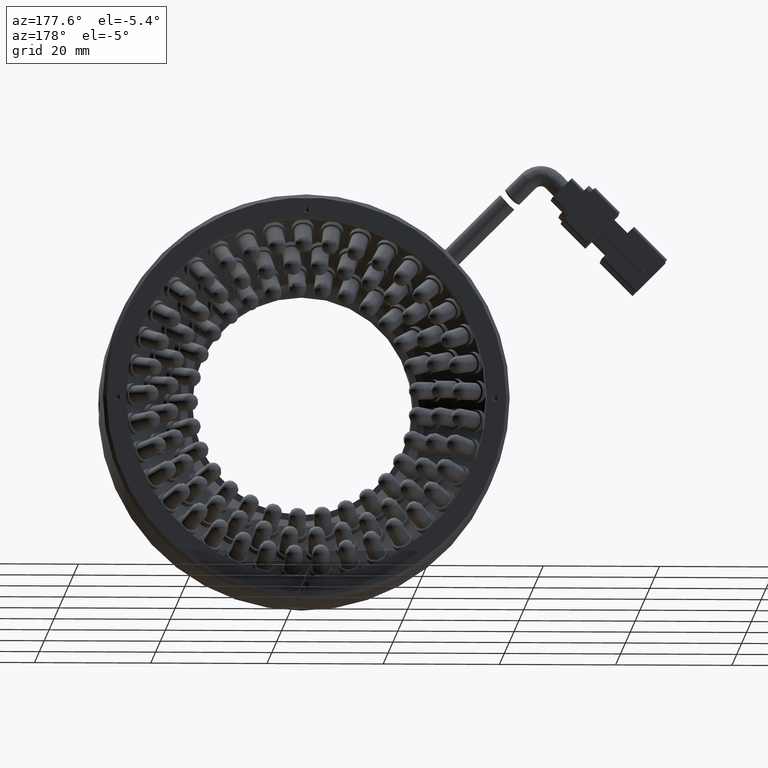
[diagram: clean part render]
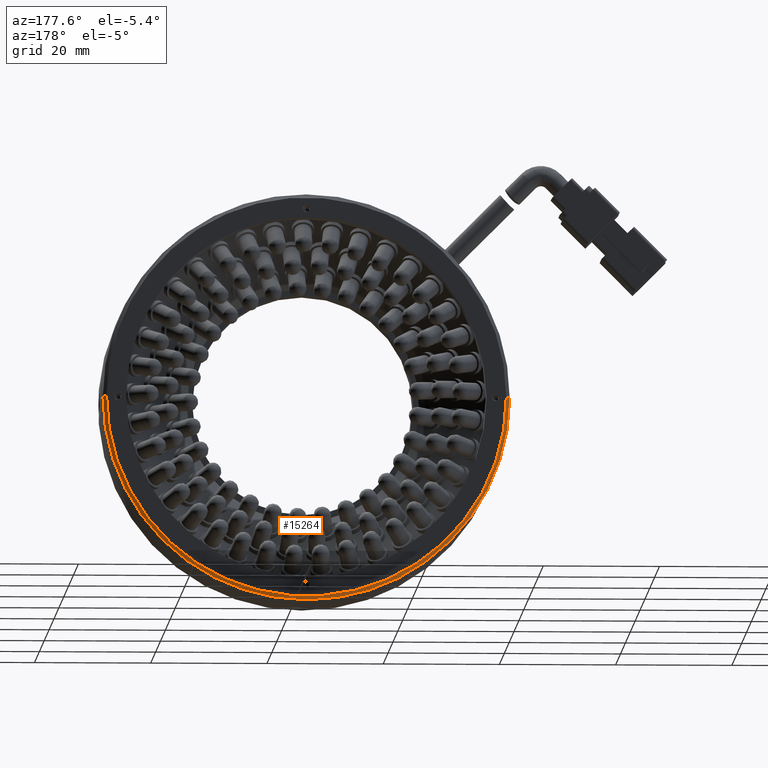
[diagram: same view with one face highlighted and labeled with its STEP entity id]
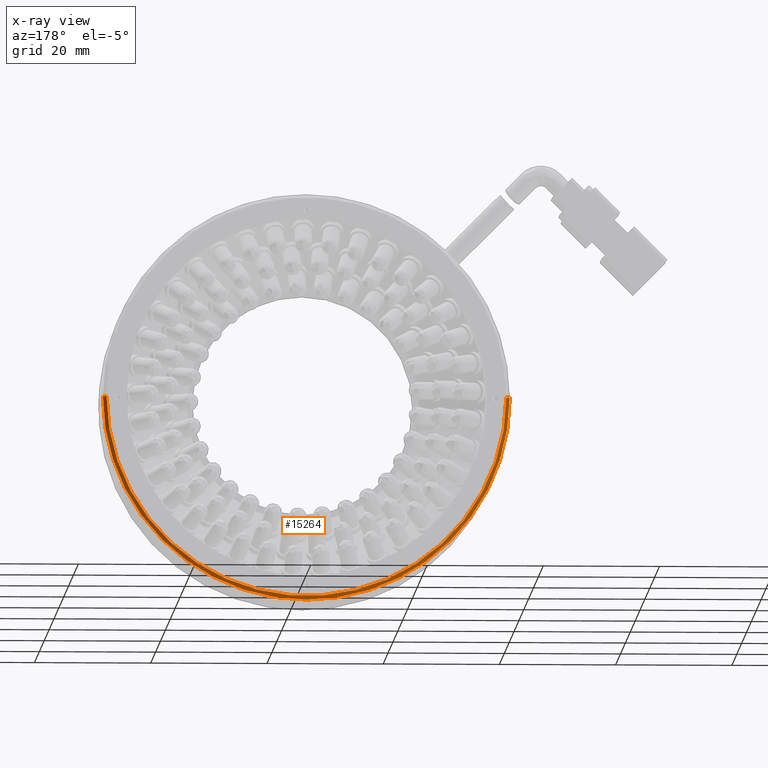
[diagram: x-ray of the same camera — body ghosted, the highlighted face saturated]
A machine part, auxiliary view. The second image highlights one B-rep face of the part: STEP entity #15264.
The next image is the same camera in x-ray: the body ghosted, the highlighted face saturated — about 0% of this face is hidden behind the body in this view.
In plain terms, the highlighted conical surface has half-angle 45 deg.
Its self-contained STEP definition (entity closure, byte-faithful):
#3446 = CARTESIAN_POINT ( 'NONE',  ( 32.28392897960851800, 16.70727133510872900, -1.131636017531745300E-015 ) ) ;
#5012 = VERTEX_POINT ( 'NONE', #54032 ) ;
#5571 = CARTESIAN_POINT ( 'NONE',  ( 31.68392897960855200, 17.30727133510869100, -1.131636017531745300E-015 ) ) ;
#5646 = CARTESIAN_POINT ( 'NONE',  ( -2.716071020391490200, 16.70727133510872900, -1.131636017531745300E-015 ) ) ;
#8736 = CARTESIAN_POINT ( 'NONE',  ( -2.716071020391490200, 17.30727133510869100, -1.131636017531745300E-015 ) ) ;
#11140 = EDGE_CURVE ( 'NONE', #5012, #46413, #76349, .T. ) ;
#13149 = ORIENTED_EDGE ( 'NONE', *, *, #42486, .F. ) ;
#15264 = ADVANCED_FACE ( 'NONE', ( #63432 ), #19345, .T. ) ;
#15405 = CARTESIAN_POINT ( 'NONE',  ( -2.716071020391490200, 16.70727133510872900, -1.131636017531745300E-015 ) ) ;
#15480 = DIRECTION ( 'NONE',  ( 1.000000000000000000, 0.0000000000000000000, 0.0000000000000000000 ) ) ;
#15877 = DIRECTION ( 'NONE',  ( 0.7071067811865536800, -0.7071067811865414700, 0.0000000000000000000 ) ) ;
#16750 = AXIS2_PLACEMENT_3D ( 'NONE', #15405, #62306, #22200 ) ;
#17882 = VECTOR ( 'NONE', #67485, 1000.000000000000000 ) ;
#19345 = CONICAL_SURFACE ( 'NONE', #28432, 35.00000000000000700, 0.7853981633974569400 ) ;
#20468 = EDGE_CURVE ( 'NONE', #25017, #60338, #53803, .T. ) ;
#22200 = DIRECTION ( 'NONE',  ( 0.0000000000000000000, -9.912705577010321900E-017, -1.000000000000000000 ) ) ;
#24199 = EDGE_LOOP ( 'NONE', ( #13149, #51684, #80922, #73141, #86817 ) ) ;
#24707 = CARTESIAN_POINT ( 'NONE',  ( -2.716071020391490200, 16.70727133510872900, -1.131636017531745300E-015 ) ) ;
#25017 = VERTEX_POINT ( 'NONE', #31693 ) ;
#28432 = AXIS2_PLACEMENT_3D ( 'NONE', #5646, #85916, #79507 ) ;
#31396 = DIRECTION ( 'NONE',  ( 0.0000000000000000000, -9.912705577010321900E-017, -1.000000000000000000 ) ) ;
#31693 = CARTESIAN_POINT ( 'NONE',  ( -2.716071020391490200, 16.70727133510872500, -35.00000000000001400 ) ) ;
#38293 = AXIS2_PLACEMENT_3D ( 'NONE', #8736, #55613, #15480 ) ;
#42486 = EDGE_CURVE ( 'NONE', #5012, #60338, #71376, .T. ) ;
#43259 = AXIS2_PLACEMENT_3D ( 'NONE', #24707, #71499, #31396 ) ;
#46413 = VERTEX_POINT ( 'NONE', #5571 ) ;
#47778 = VECTOR ( 'NONE', #15877, 1000.000000000000000 ) ;
#51684 = ORIENTED_EDGE ( 'NONE', *, *, #11140, .T. ) ;
#53803 = CIRCLE ( 'NONE', #43259, 35.00000000000001400 ) ;
#54032 = CARTESIAN_POINT ( 'NONE',  ( -37.11607102039153000, 17.30727133510869100, 3.117888375509573500E-015 ) ) ;
#55613 = DIRECTION ( 'NONE',  ( -4.956352788505163400E-017, -1.000000000000000000, 0.0000000000000000000 ) ) ;
#55727 = CARTESIAN_POINT ( 'NONE',  ( 32.28392897960852500, 16.70727133510872500, -1.131636017531745300E-015 ) ) ;
#60338 = VERTEX_POINT ( 'NONE', #69995 ) ;
#60790 = CARTESIAN_POINT ( 'NONE',  ( -37.71607102039149600, 16.70727133510873200, 3.154627779483992400E-015 ) ) ;
#62306 = DIRECTION ( 'NONE',  ( 0.0000000000000000000, 1.000000000000000000, 0.0000000000000000000 ) ) ;
#63432 = FACE_OUTER_BOUND ( 'NONE', #24199, .T. ) ;
#65545 = LINE ( 'NONE', #55727, #47778 ) ;
#66551 = EDGE_CURVE ( 'NONE', #46413, #75490, #65545, .T. ) ;
#67485 = DIRECTION ( 'NONE',  ( -0.7071067811865536800, -0.7071067811865414700, 8.659560562355008000E-017 ) ) ;
#69995 = CARTESIAN_POINT ( 'NONE',  ( -37.71607102039150300, 16.70727133510872900, 3.154627779483993200E-015 ) ) ;
#71376 = LINE ( 'NONE', #60790, #17882 ) ;
#71499 = DIRECTION ( 'NONE',  ( 0.0000000000000000000, 1.000000000000000000, 0.0000000000000000000 ) ) ;
#73141 = ORIENTED_EDGE ( 'NONE', *, *, #81645, .T. ) ;
#75490 = VERTEX_POINT ( 'NONE', #3446 ) ;
#76349 = CIRCLE ( 'NONE', #38293, 34.40000000000004100 ) ;
#79507 = DIRECTION ( 'NONE',  ( 1.000000000000000000, -9.912705577010324300E-017, 0.0000000000000000000 ) ) ;
#79513 = CIRCLE ( 'NONE', #16750, 35.00000000000001400 ) ;
#80922 = ORIENTED_EDGE ( 'NONE', *, *, #66551, .T. ) ;
#81645 = EDGE_CURVE ( 'NONE', #75490, #25017, #79513, .T. ) ;
#85916 = DIRECTION ( 'NONE',  ( -4.956352788505163400E-017, -1.000000000000000000, 0.0000000000000000000 ) ) ;
#86817 = ORIENTED_EDGE ( 'NONE', *, *, #20468, .T. ) ;